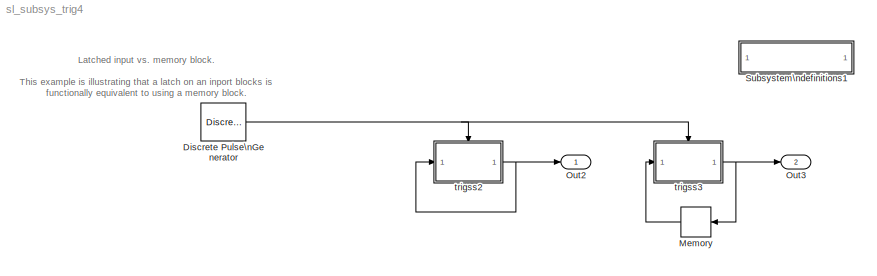
MODEL sl_subsys_trig4
KIND model
BLOCK [SubSystem]  Subsystem\ndefinitions1
  MaskDisplay = disp('Subsystem\\ndefinitions')\n\n
  MaskIconFrame = on
  MaskIconOpaque = on
  MaskIconRotate = none
  MaskIconUnits = autoscale
  MinAlgLoopOccurrences = off
  OpenFcn = helpview([matlabroot,'/toolbox/simulink/simdemos/sl_subsys_definitions.html']);
  Ports = []
  PropExecContextAcrossSSBoundary = on
  RTWSystemCode = Auto
  TreatAsAtomicUnit = off
BLOCK [DiscretePulseGenerator] Discrete Pulse\nGenerator
  Ports = [0, 1]
BLOCK [Memory] Memory
  InheritSampleTime = on
BLOCK [Outport] Out2
  IconDisplay = Port number
BLOCK [Outport] Out3
  IconDisplay = Port number
  Port = 2
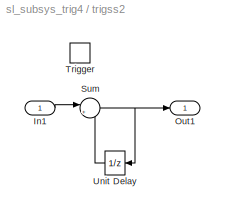
BLOCK [SubSystem] trigss2
  MinAlgLoopOccurrences = off
  Ports = [1, 1, 0, 1]
  PropExecContextAcrossSSBoundary = on
  RTWSystemCode = Auto
  TreatAsAtomicUnit = on
BLOCK [Inport] trigss2/In1
  IconDisplay = Port number
  LatchInput = on
  Port = 1
BLOCK [Outport] trigss2/Out1
  IconDisplay = Port number
BLOCK [Sum] trigss2/Sum
  IconShape = round
  Inputs = |++
  Ports = [2, 1]
BLOCK [TriggerPort] trigss2/Trigger
  Ports = []
BLOCK [UnitDelay] trigss2/Unit Delay
  SampleTime = -1
  X0 = 1
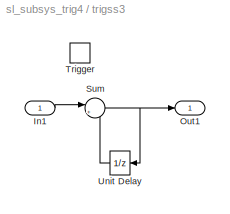
BLOCK [SubSystem] trigss3
  MinAlgLoopOccurrences = off
  Ports = [1, 1, 0, 1]
  PropExecContextAcrossSSBoundary = on
  RTWSystemCode = Auto
  TreatAsAtomicUnit = on
BLOCK [Inport] trigss3/In1
  IconDisplay = Port number
  LatchInput = off
  Port = 1
BLOCK [Outport] trigss3/Out1
  IconDisplay = Port number
BLOCK [Sum] trigss3/Sum
  IconShape = round
  Inputs = |++
  Ports = [2, 1]
BLOCK [TriggerPort] trigss3/Trigger
  Ports = []
BLOCK [UnitDelay] trigss3/Unit Delay
  SampleTime = -1
  X0 = 1
ANNOTATION (root): Latched input vs. memory block.\n\nThis example is illustrating that a latch on an inport blocks is \nfunctionally equivalent to using a memory block.
NET Discrete Pulse\nGenerator:1 -> trigss2:trigger, trigss3:trigger
LINE Memory:1 -> trigss3:1
LINE trigss2/In1:1 -> trigss2/Sum:1
NET trigss2/Sum:1 -> trigss2/Out1:1, trigss2/Unit Delay:1
LINE trigss2/Unit Delay:1 -> trigss2/Sum:2
NET trigss2:1 -> Out2:1, trigss2:1
LINE trigss3/In1:1 -> trigss3/Sum:1
NET trigss3/Sum:1 -> trigss3/Out1:1, trigss3/Unit Delay:1
LINE trigss3/Unit Delay:1 -> trigss3/Sum:2
NET trigss3:1 -> Memory:1, Out3:1
note: NET lines group one-source signal fan-out (src -> all destinations, sorted); 1:1 wires keep LINE
